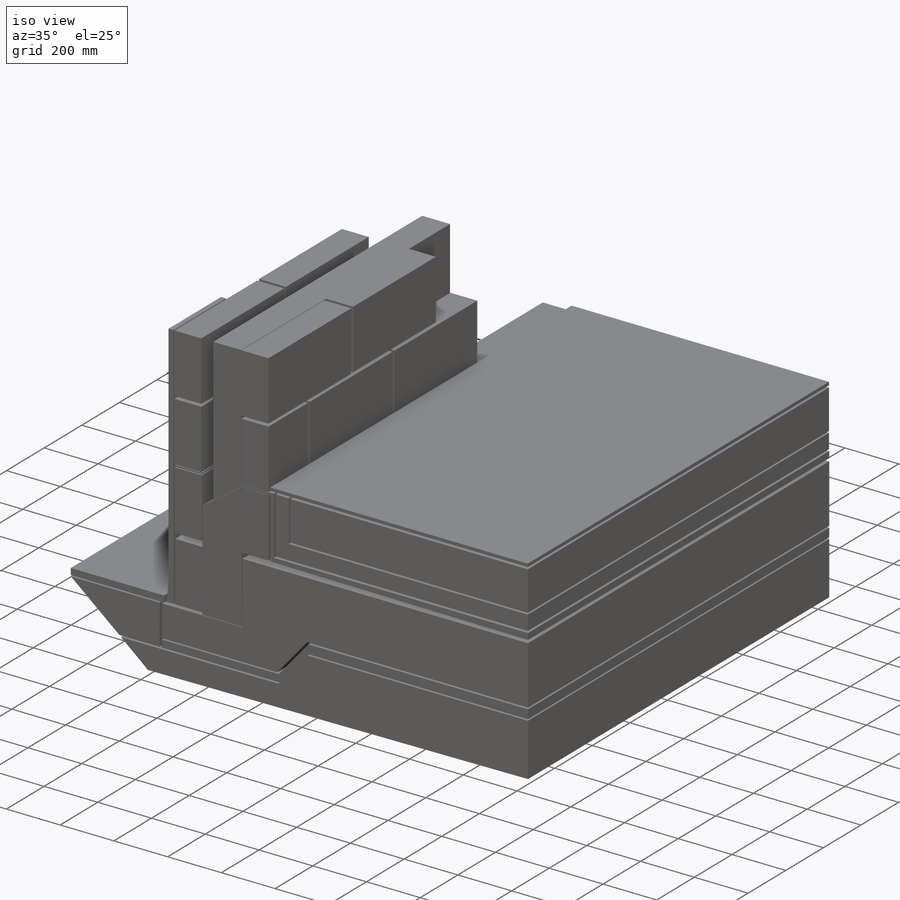
[diagram: iso view]
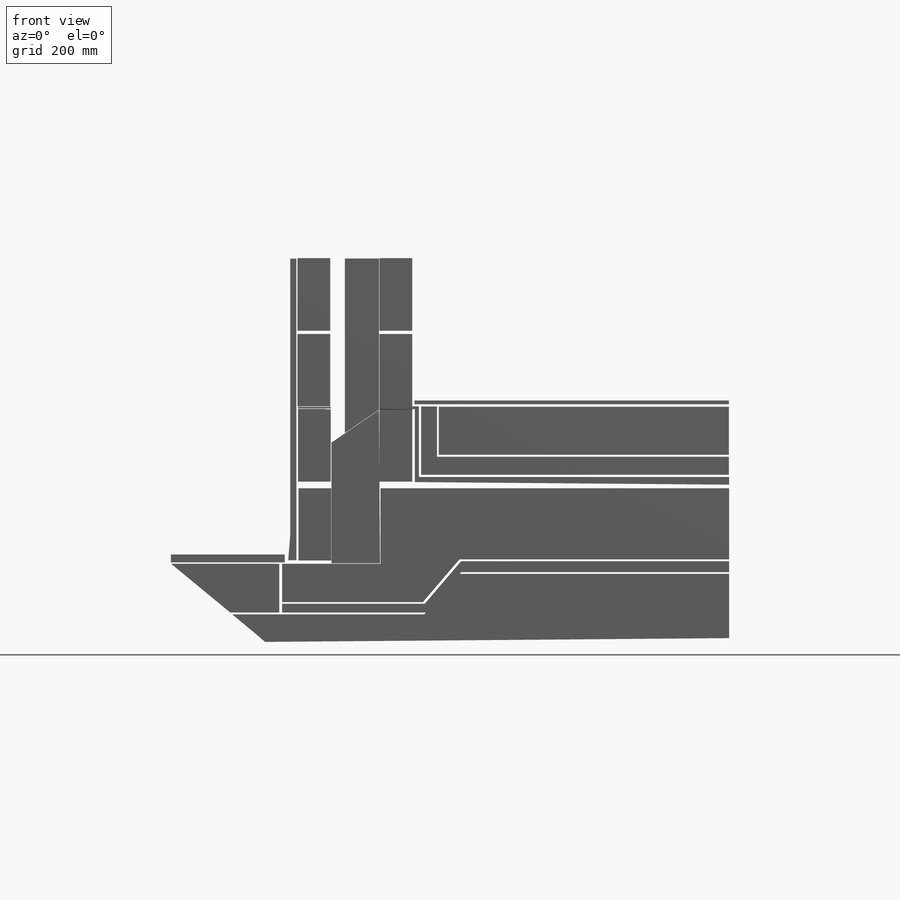
[diagram: front view]
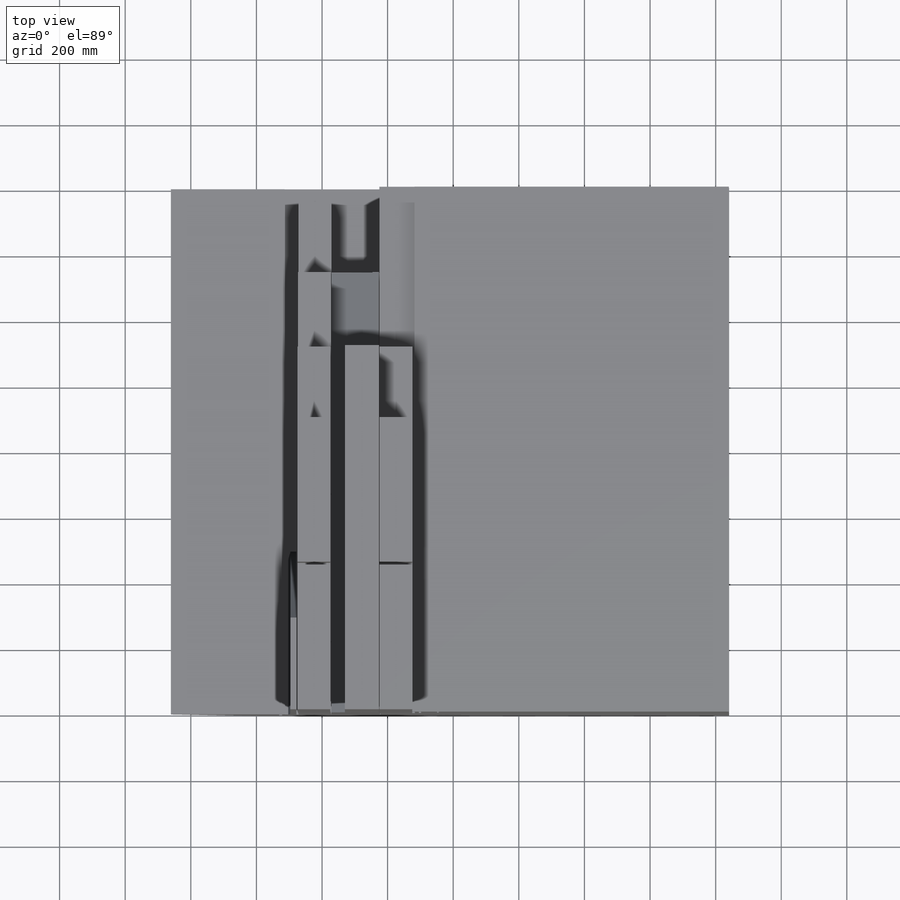
[diagram: top view]
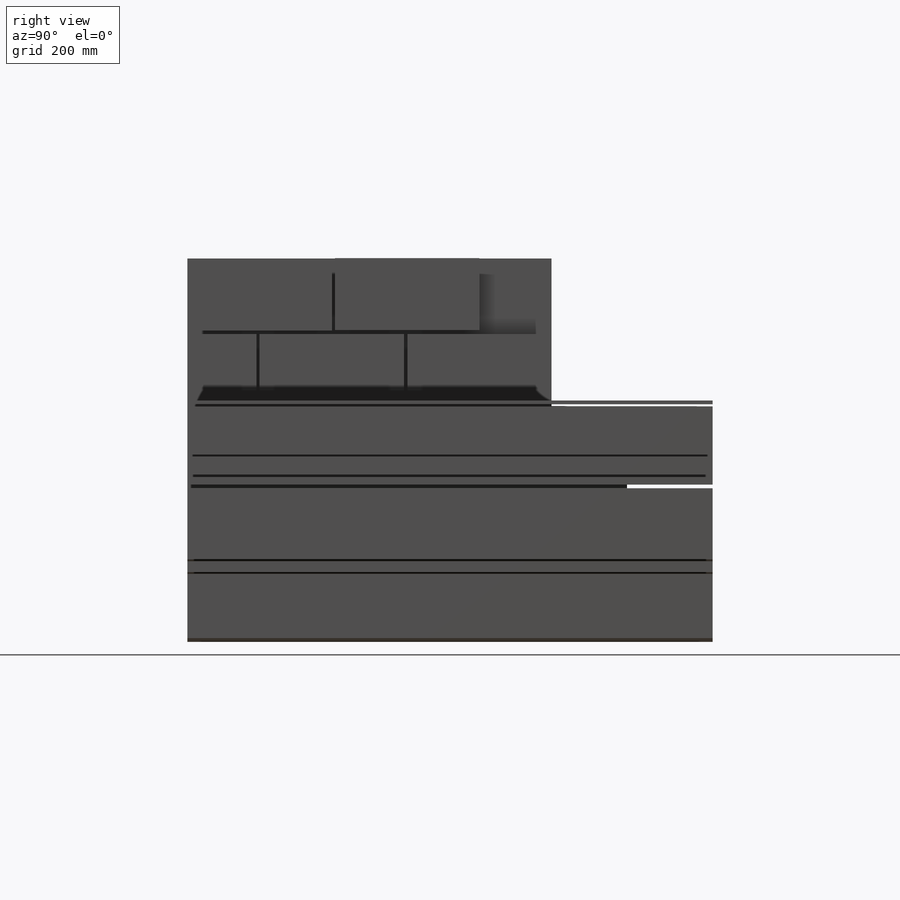
[diagram: right view]
SOLIDWORKS PART (.sldprt)
format: sldprt  version: not decoded by parser v0  size: 730,112 bytes
history: native  units: mm
features: sketch x24, extrude x23, material x1, cut_extrude x1 (+15 scaffold rows collapsed)
feature tree (64):
  scaffold x15  (default folders/planes/origin — collapsed)
  material  "Material <not specified>"
  sketch  "Sketch1"
  extrude  "Extrude1"  Depth=1601mm
  sketch  "Sketch6"  dims[D1=230.0mm D2=300.0mm D3=~216.615505mm]
  extrude  "Extrude4"  [1 undecoded]
  sketch  "Sketch7"
  extrude  "Extrude5"  [1 undecoded]
  sketch  "Sketch8"  dims[D1=100.0mm D2=220.0mm D3=10.0mm D4=150.0mm]
  extrude  "Extrude6"  Depth=210mm
  sketch  "Sketch9"  dims[D1=220.0mm D2=100.0mm D3=100.0mm D4=220.0mm]
  extrude  "Extrude7"  Depth=440mm
  sketch  "Sketch10"  dims[D1=100.0mm D2=220.0mm D3=220.0mm D4=100.0mm D5=10.0mm D6=10.0mm D7=220.0mm]
  extrude  "Extrude8"  Depth=210mm
  sketch  "Sketch11"  dims[D1=220.0mm D2=100.0mm D3=100.0mm D4=220.0mm D5=10.0mm D6=10.0mm]
  extrude  "Extrude9"  Depth=440mm
  sketch  "Sketch12"  dims[D1=440.0mm D2=220.0mm D3=10.0mm D4=440.0mm D5=220.0mm D6=10.0mm]
  extrude  "Extrude10"  Depth=100mm
  sketch  "Sketch13"  dims[D1=440.0mm D2=220.0mm D3=220.0mm D4=440.0mm D5=10.0mm D6=10.0mm]
  extrude  "Extrude11"  Depth=100mm
  sketch  "Sketch14"  dims[D1=220.0mm D2=440.0mm D3=10.0mm]
  extrude  "Extrude12"  Depth=100mm
  sketch  "Sketch15"  dims[D1=220.0mm D2=440.0mm D3=440.0mm D4=220.0mm D5=10.0mm D6=10.0mm]
  extrude  "Extrude13"  Depth=100mm
  sketch  "Sketch16"  dims[D1=440.0mm D2=220.0mm D3=10.0mm]
  extrude  "Extrude14"  Depth=100mm
  sketch  "Sketch17"
  extrude  "Extrude15"  Depth=100mm
  sketch  "Sketch18"
  extrude  "Extrude19"  [1 undecoded]
  sketch  "Sketch19"
  extrude  "Extrude20"  [1 undecoded]
  sketch  "Sketch21"
  extrude  "Extrude22"  [1 undecoded]
  sketch  "Sketch22"
  extrude  "Extrude23"  [1 undecoded]
  sketch  "Sketch23"
  extrude  "Extrude24"  [1 undecoded]
  sketch  "Sketch24"
  extrude  "Extrude25"  [1 undecoded]
  sketch  "Sketch25"
  extrude  "Extrude26"  [1 undecoded]
  sketch  "Sketch27"
  extrude  "Extrude29"  Depth=559mm
  sketch  "Sketch30"
  cut_extrude  "Extrude33"  Depth=43mm
  sketch  "Sketch31"
  extrude  "Extrude34"  [1 undecoded]
  sketch  "Sketch32"
  extrude  "Extrude35"  [1 undecoded]
decode coverage: 23 of 48 modeling features carry decoded parameters
note: ~ marks probable driven/reference dimensions
note: 11 parameter values undecoded
summary: no parameter record found for 11 features
note: suppression state not decoded; provenance and decode notes live in map.json
